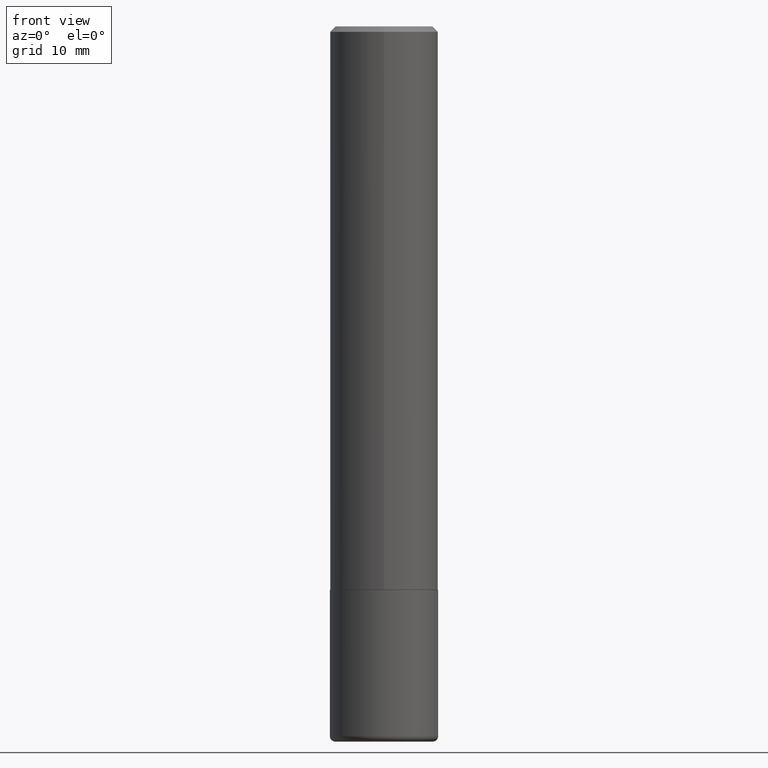
[diagram: clean part render]
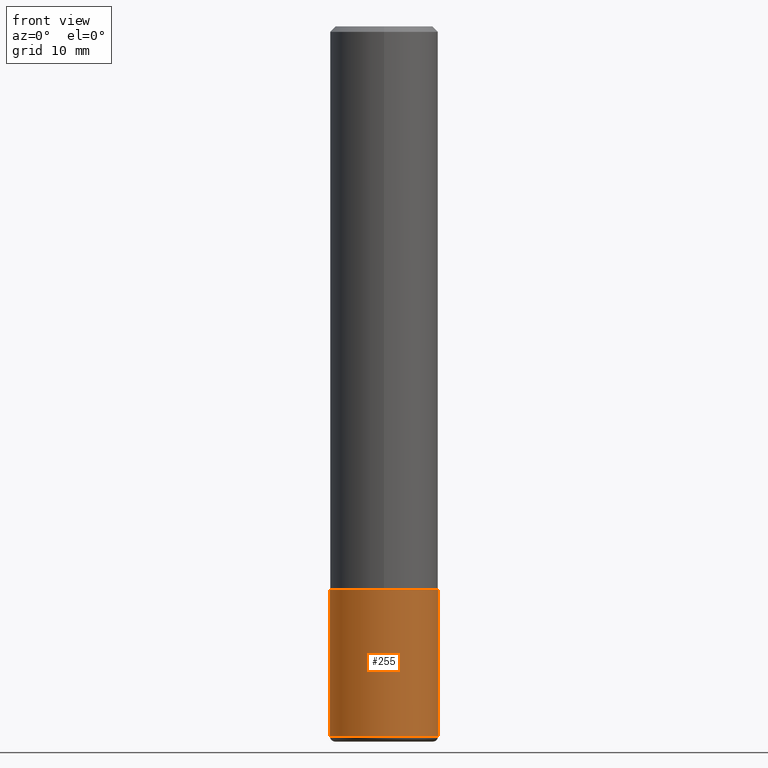
[diagram: same view with one face highlighted and labeled with its STEP entity id]
A machine part, front view. The second image highlights one B-rep face of the part: STEP entity #255.
In plain terms, the highlighted cylindrical surface (partial cylindrical patch) has radius 5 mm, axis along (-0, 0, 1).
Its self-contained STEP definition (entity closure, byte-faithful):
#2 = EDGE_CURVE ( 'NONE', #179, #27, #392, .T. ) ;
#4 = LINE ( 'NONE', #164, #75 ) ;
#10 = DIRECTION ( 'NONE',  ( -2.445468806185136597E-29, 3.491481338843145583E-15, 1.000000000000000000 ) ) ;
#11 = CARTESIAN_POINT ( 'NONE',  ( 0.1968499999999999417, -1.037807913157736305E-14, -2.578700000000000436 ) ) ;
#14 = CYLINDRICAL_SURFACE ( 'NONE', #321, 0.1968499999999999694 ) ;
#25 = CARTESIAN_POINT ( 'NONE',  ( 0.000000000000000000, 0.000000000000000000, 0.000000000000000000 ) ) ;
#27 = VERTEX_POINT ( 'NONE', #276 ) ;
#30 = VERTEX_POINT ( 'NONE', #368 ) ;
#60 = DIRECTION ( 'NONE',  ( -2.445468806185136597E-29, 3.491481338843145583E-15, 1.000000000000000000 ) ) ;
#69 = VECTOR ( 'NONE', #414, 39.37007874015748143 ) ;
#75 = VECTOR ( 'NONE', #331, 39.37007874015748143 ) ;
#76 = EDGE_CURVE ( 'NONE', #30, #179, #353, .T. ) ;
#85 = CARTESIAN_POINT ( 'NONE',  ( -0.1968499999999999694, 1.398703375343756999E-15, -9.682923725166782276E-30 ) ) ;
#102 = EDGE_CURVE ( 'NONE', #416, #27, #4, .T. ) ;
#107 = ORIENTED_EDGE ( 'NONE', *, *, #76, .F. ) ;
#123 = AXIS2_PLACEMENT_3D ( 'NONE', #293, #10, #300 ) ;
#131 = CIRCLE ( 'NONE', #123, 0.1968499999999999694 ) ;
#164 = CARTESIAN_POINT ( 'NONE',  ( 0.1968499999999999694, -1.374596203102541411E-15, 9.598753983154298056E-30 ) ) ;
#165 = ORIENTED_EDGE ( 'NONE', *, *, #102, .T. ) ;
#179 = VERTEX_POINT ( 'NONE', #208 ) ;
#208 = CARTESIAN_POINT ( 'NONE',  ( -0.1968500000000000250, -6.676918387333497821E-15, -2.047200000000000131 ) ) ;
#255 = ADVANCED_FACE ( 'NONE', ( #370 ), #14, .T. ) ;
#260 = DIRECTION ( 'NONE',  ( 1.000000000000000000, -6.982962677686266711E-15, 4.876176775795935793E-29 ) ) ;
#263 = EDGE_CURVE ( 'NONE', #30, #416, #131, .T. ) ;
#276 = CARTESIAN_POINT ( 'NONE',  ( 0.1968500000000000250, -8.522356799982231388E-15, -2.047200000000000131 ) ) ;
#293 = CARTESIAN_POINT ( 'NONE',  ( 6.306130410509613019E-29, -9.003482928474821437E-15, -2.578700000000000436 ) ) ;
#294 = DIRECTION ( 'NONE',  ( -2.445468806185136597E-29, 3.491481338843145583E-15, 1.000000000000000000 ) ) ;
#300 = DIRECTION ( 'NONE',  ( 1.000000000000000000, -6.982962677686269866E-15, 0.000000000000000000 ) ) ;
#301 = CARTESIAN_POINT ( 'NONE',  ( 5.006363740022212241E-29, -7.147760596879688202E-15, -2.047200000000000131 ) ) ;
#302 = ORIENTED_EDGE ( 'NONE', *, *, #2, .F. ) ;
#321 = AXIS2_PLACEMENT_3D ( 'NONE', #25, #60, #260 ) ;
#331 = DIRECTION ( 'NONE',  ( -2.445468806185136877E-29, 3.491481338843145188E-15, 1.000000000000000000 ) ) ;
#332 = EDGE_LOOP ( 'NONE', ( #107, #417, #165, #302 ) ) ;
#353 = LINE ( 'NONE', #85, #69 ) ;
#365 = DIRECTION ( 'NONE',  ( 1.000000000000000000, -6.982962677686267499E-15, 0.000000000000000000 ) ) ;
#368 = CARTESIAN_POINT ( 'NONE',  ( -0.1968499999999999417, -7.604779553131062861E-15, -2.578700000000000436 ) ) ;
#370 = FACE_OUTER_BOUND ( 'NONE', #332, .T. ) ;
#385 = AXIS2_PLACEMENT_3D ( 'NONE', #301, #294, #365 ) ;
#392 = CIRCLE ( 'NONE', #385, 0.1968500000000000250 ) ;
#414 = DIRECTION ( 'NONE',  ( -2.445468806185136877E-29, 3.491481338843145188E-15, 1.000000000000000000 ) ) ;
#416 = VERTEX_POINT ( 'NONE', #11 ) ;
#417 = ORIENTED_EDGE ( 'NONE', *, *, #263, .T. ) ;